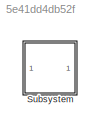
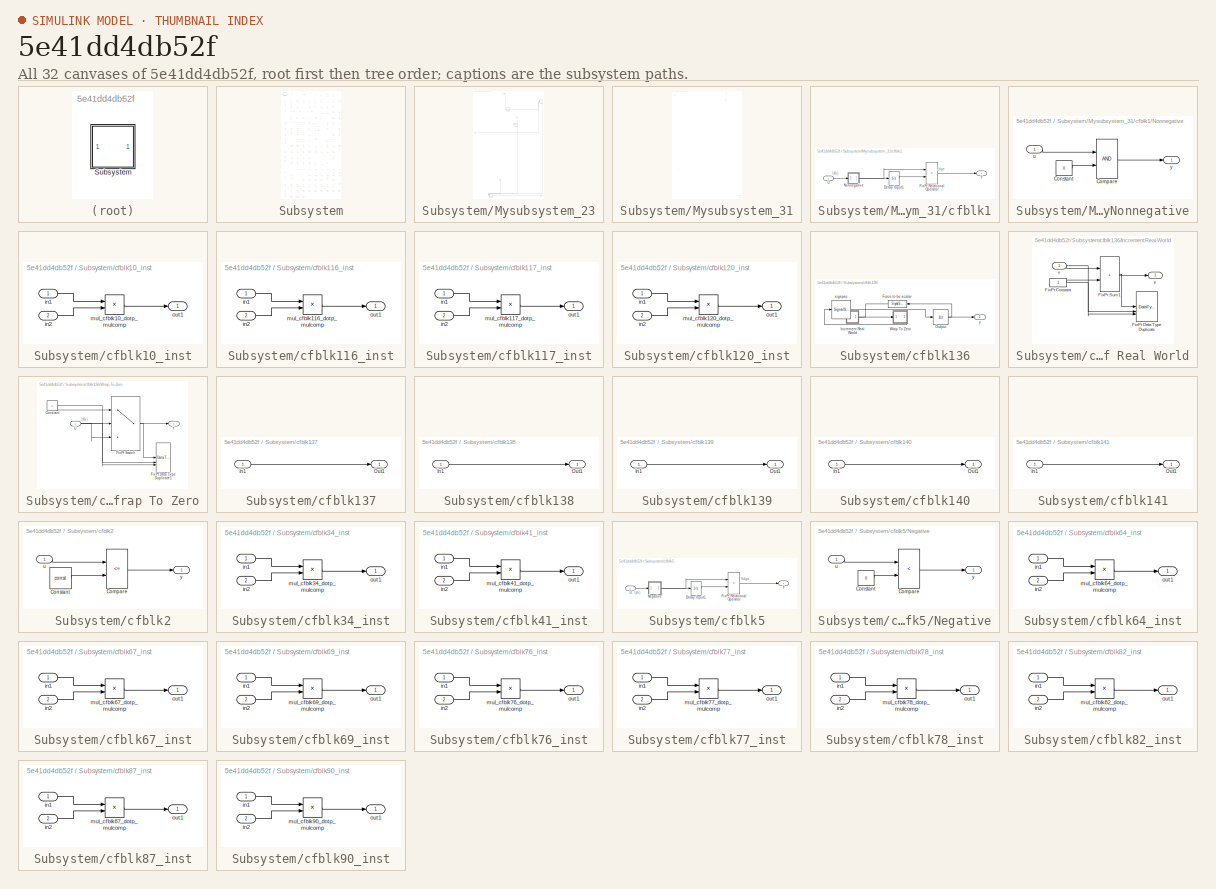
[diagram: thumbnail index - all 32 canvases of the model, root first then tree order]
MODEL slx_5e41dd4db52f
KIND model
CONFIG AbsTol = auto
CONFIG EnableMultiTasking = off
CONFIG FixedStep = auto
CONFIG MaxStep = auto
CONFIG MinStep = auto
CONFIG RelTol = 1e-3
CONFIG SampleTimeConstraint = Unconstrained
CONFIG SolverName = VariableStepAuto
CONFIG StartTime = 0.0
CONFIG StopTime = 10.0
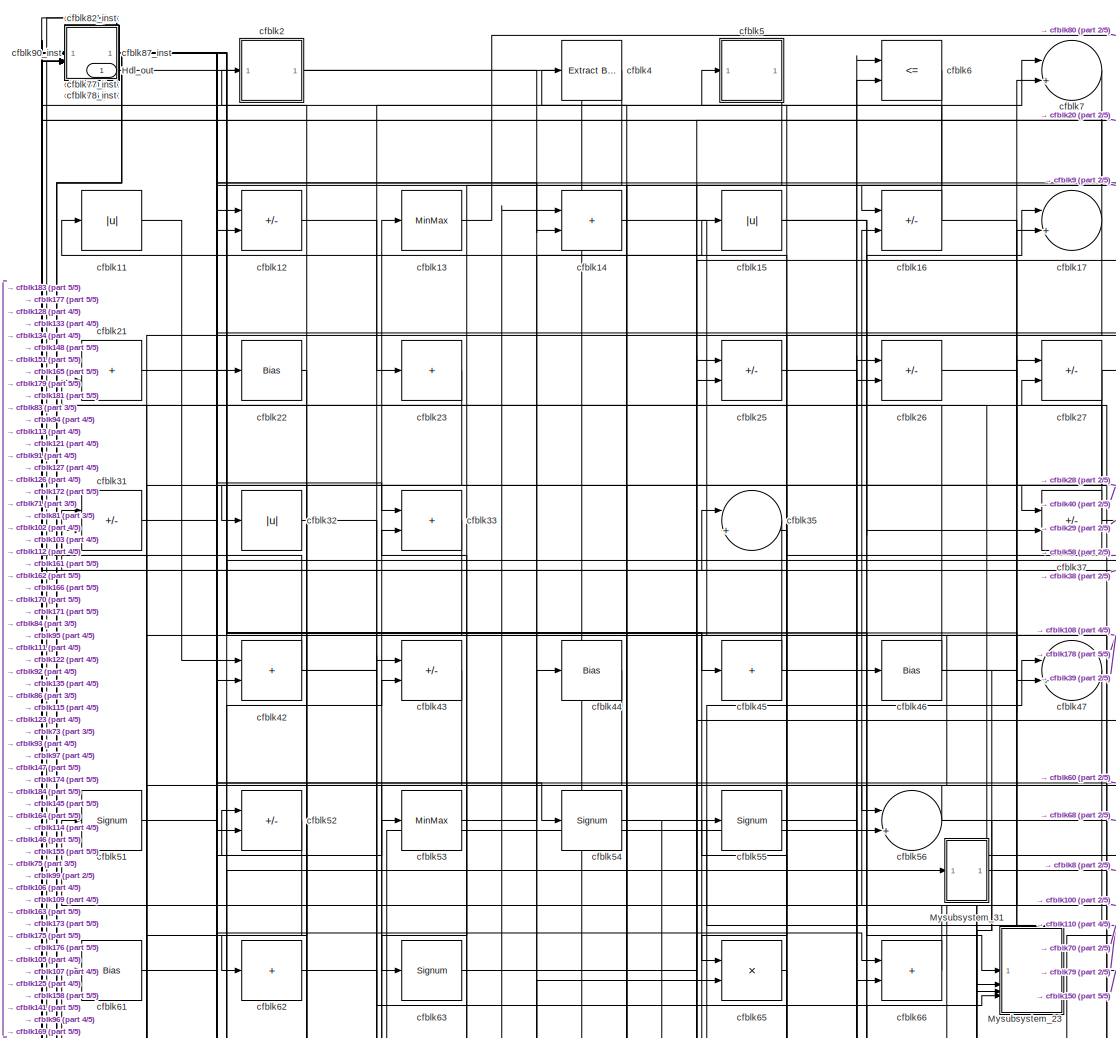
[diagram: Subsystem - part 1/5, top center region]
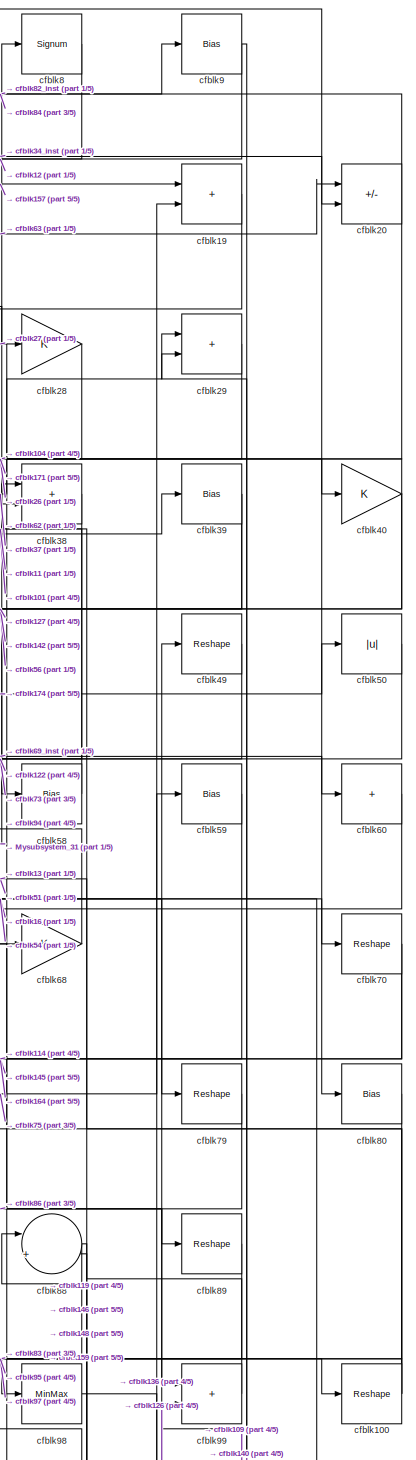
[diagram: Subsystem - part 2/5, top right region]
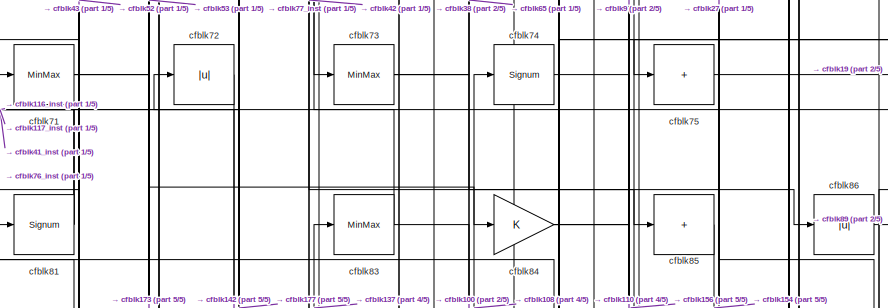
[diagram: Subsystem - part 3/5, middle left region]
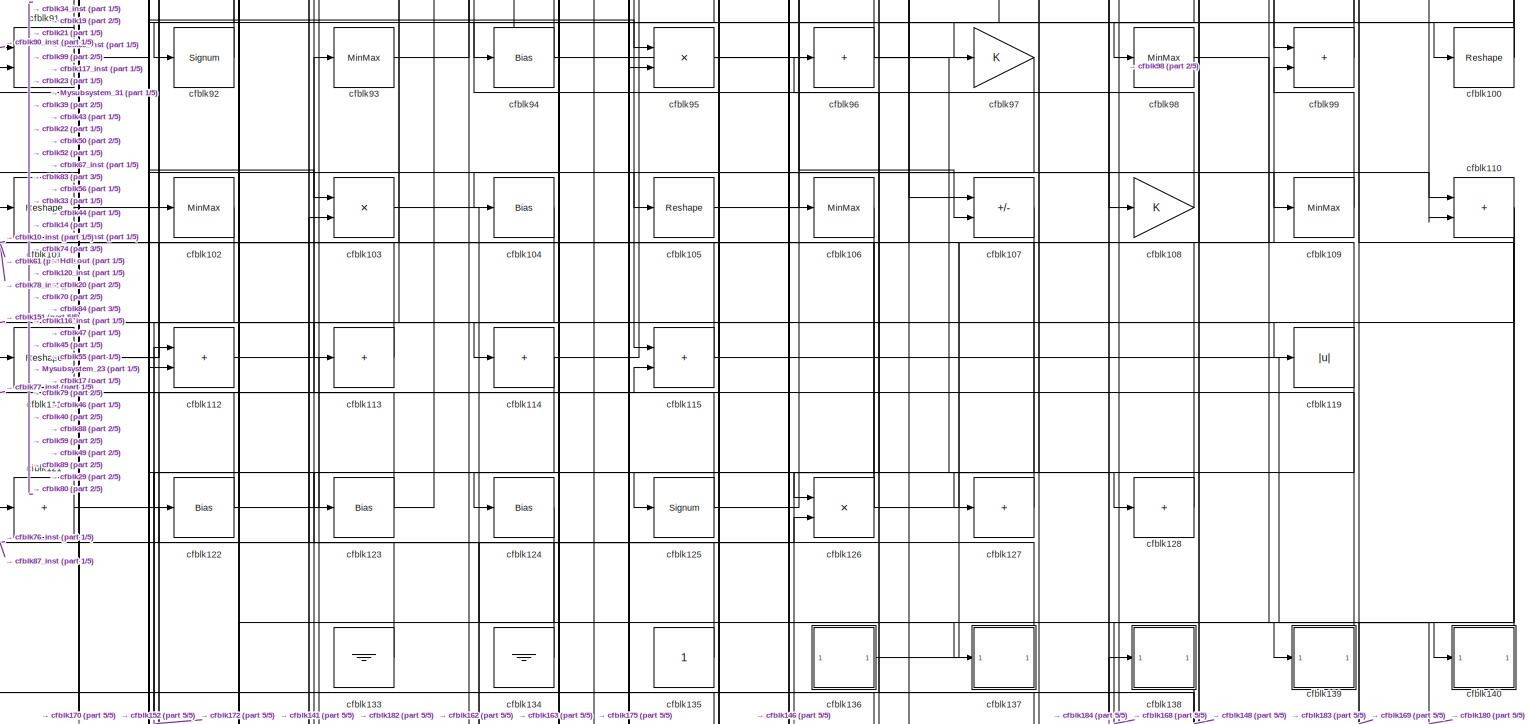
[diagram: Subsystem - part 4/5, full width, middle band]
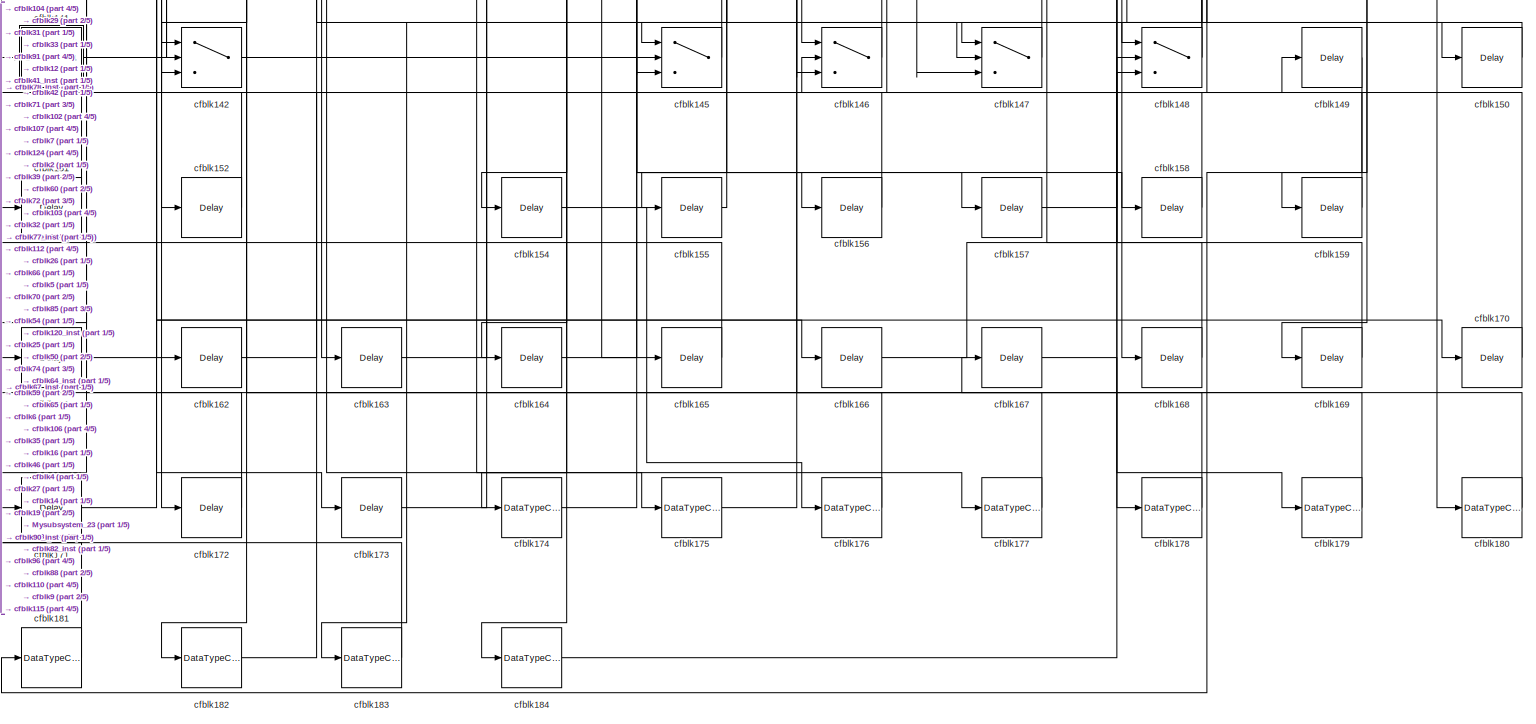
[diagram: Subsystem - part 5/5, full width, bottom band]
BLOCK [SubSystem] Subsystem
BLOCK [Outport] Subsystem/Hdl_out
  OutDataTypeStr = uint8
  SampleTime = 1
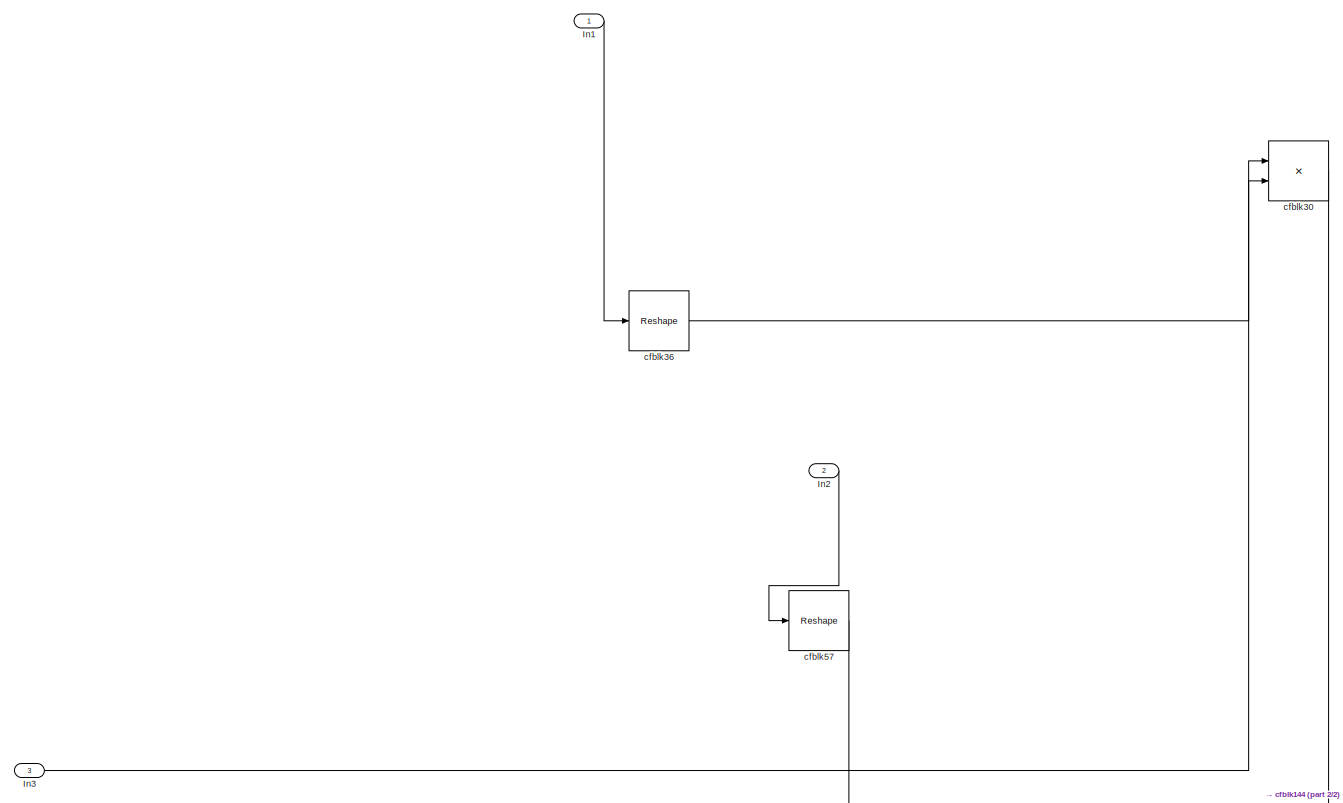
[diagram: Subsystem/Mysubsystem_23 - part 1/2, full width, top band]
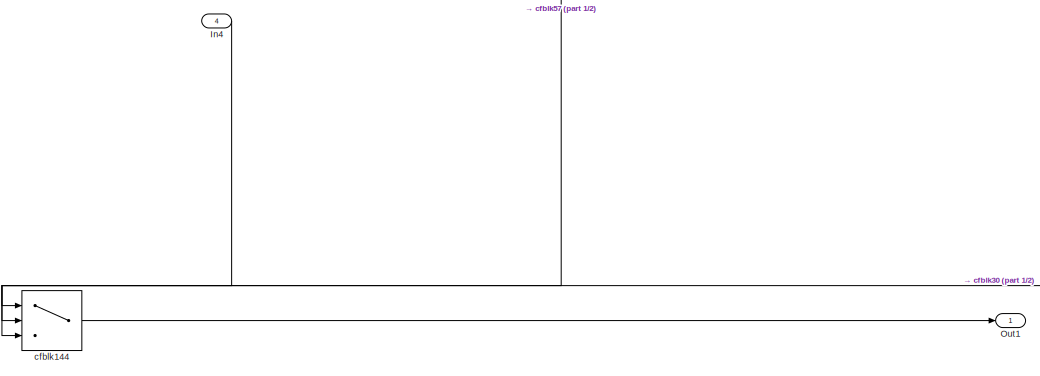
[diagram: Subsystem/Mysubsystem_23 - part 2/2, full width, bottom band]
BLOCK [SubSystem] Subsystem/Mysubsystem_23
BLOCK [Inport] Subsystem/Mysubsystem_23/In1
  OutDataTypeStr = uint8
  PortDimensions = 1
  SampleTime = 1
BLOCK [Inport] Subsystem/Mysubsystem_23/In2
  OutDataTypeStr = uint8
  Port = 2
  PortDimensions = 1
  SampleTime = 1
BLOCK [Inport] Subsystem/Mysubsystem_23/In3
  OutDataTypeStr = uint8
  Port = 3
  PortDimensions = 1
  SampleTime = 1
BLOCK [Inport] Subsystem/Mysubsystem_23/In4
  OutDataTypeStr = uint8
  Port = 4
  PortDimensions = 1
  SampleTime = 1
BLOCK [Outport] Subsystem/Mysubsystem_23/Out1
  SampleTime = 1
BLOCK [Switch] Subsystem/Mysubsystem_23/cfblk144
  InputSameDT = off
  SaturateOnIntegerOverflow = off
BLOCK [Product] Subsystem/Mysubsystem_23/cfblk30
  Inputs = */
  RndMeth = Zero
  SaturateOnIntegerOverflow = on
BLOCK [Reshape] Subsystem/Mysubsystem_23/cfblk36
BLOCK [Reshape] Subsystem/Mysubsystem_23/cfblk57
BLOCK [SubSystem] Subsystem/Mysubsystem_31
BLOCK [Inport] Subsystem/Mysubsystem_31/In1
  OutDataTypeStr = uint8
  PortDimensions = 1
  SampleTime = 1
BLOCK [Outport] Subsystem/Mysubsystem_31/Out1
  SampleTime = 1
BLOCK [SubSystem] Subsystem/Mysubsystem_31/cfblk1
BLOCK [UnitDelay] Subsystem/Mysubsystem_31/cfblk1/Delay Input1
  Description = Store in Global RAM
  DisableCoverage = on
  HasFrameUpgradeWarning = on
  InitialCondition = vinit
  SampleTime = -1
BLOCK [RelationalOperator] Subsystem/Mysubsystem_31/cfblk1/FixPt Relational Operator
  InputSameDT = off
  Operator = >
  OutDataTypeStr = boolean
  ZeroCross = off
BLOCK [SubSystem] Subsystem/Mysubsystem_31/cfblk1/Nonnegative
BLOCK [RelationalOperator] Subsystem/Mysubsystem_31/cfblk1/Nonnegative/Compare
  OutDataTypeStr = boolean
  ZeroCross = off
BLOCK [Constant] Subsystem/Mysubsystem_31/cfblk1/Nonnegative/Constant
  DisableCoverage = on
  OutDataTypeStr = Inherit: Inherit via back propagation
  PreserveConstantTs = on
  SampleTime = -1
  Value = 0
BLOCK [Inport] Subsystem/Mysubsystem_31/cfblk1/Nonnegative/u
  OutDataTypeStr = uint8
  SampleTime = 1
BLOCK [Outport] Subsystem/Mysubsystem_31/cfblk1/Nonnegative/y
  SampleTime = 1
BLOCK [Inport] Subsystem/Mysubsystem_31/cfblk1/U
  OutDataTypeStr = uint8
  SampleTime = 1
BLOCK [Outport] Subsystem/Mysubsystem_31/cfblk1/Y
  SampleTime = 1
BLOCK [Delay] Subsystem/Mysubsystem_31/cfblk160
  InputPortMap = u0
  SampleTime = 1
BLOCK [Gain] Subsystem/Mysubsystem_31/cfblk18
BLOCK [Reshape] Subsystem/cfblk100
BLOCK [Reshape] Subsystem/cfblk101
BLOCK [MinMax] Subsystem/cfblk102
  OutDataTypeStr = uint8
BLOCK [Product] Subsystem/cfblk103
  Inputs = */
  OutDataTypeStr = uint8
  RndMeth = Zero
  SaturateOnIntegerOverflow = on
BLOCK [Bias] Subsystem/cfblk104
  Bias = 0.0
  SaturateOnIntegerOverflow = off
BLOCK [Reshape] Subsystem/cfblk105
BLOCK [MinMax] Subsystem/cfblk106
  OutDataTypeStr = uint8
BLOCK [Sum] Subsystem/cfblk107
  IconShape = rectangular
  Inputs = +-
  OutDataTypeStr = uint8
BLOCK [Gain] Subsystem/cfblk108
  OutDataTypeStr = uint8
BLOCK [MinMax] Subsystem/cfblk109
  OutDataTypeStr = uint8
BLOCK [SubSystem] Subsystem/cfblk10_inst
BLOCK [Inport] Subsystem/cfblk10_inst/in1
  OutDataTypeStr = uint8
  SampleTime = 1
BLOCK [Inport] Subsystem/cfblk10_inst/in2
  OutDataTypeStr = uint8
  Port = 2
  SampleTime = 1
BLOCK [Product] Subsystem/cfblk10_inst/mul_cfblk10_dotp_mulcomp
  Inputs = **
  OutDataTypeStr = uint8
  SampleTime = 1
BLOCK [Outport] Subsystem/cfblk10_inst/out1
  OutDataTypeStr = uint8
  SampleTime = 1
BLOCK [Abs] Subsystem/cfblk11
  OutDataTypeStr = uint8
  SaturateOnIntegerOverflow = off
BLOCK [Sum] Subsystem/cfblk110
  IconShape = rectangular
  OutDataTypeStr = uint8
BLOCK [Reshape] Subsystem/cfblk111
BLOCK [Sum] Subsystem/cfblk112
  IconShape = rectangular
  OutDataTypeStr = uint8
BLOCK [Sum] Subsystem/cfblk113
  IconShape = rectangular
  Inputs = +
  OutDataTypeStr = uint8
BLOCK [Sum] Subsystem/cfblk114
  IconShape = rectangular
  Inputs = +
  OutDataTypeStr = uint8
BLOCK [Sum] Subsystem/cfblk115
  IconShape = rectangular
  OutDataTypeStr = uint8
BLOCK [SubSystem] Subsystem/cfblk116_inst
BLOCK [Inport] Subsystem/cfblk116_inst/in1
  OutDataTypeStr = uint8
  SampleTime = 1
BLOCK [Inport] Subsystem/cfblk116_inst/in2
  OutDataTypeStr = uint8
  Port = 2
  SampleTime = 1
BLOCK [Product] Subsystem/cfblk116_inst/mul_cfblk116_dotp_mulcomp
  Inputs = **
  OutDataTypeStr = uint8
  SampleTime = 1
BLOCK [Outport] Subsystem/cfblk116_inst/out1
  OutDataTypeStr = uint8
  SampleTime = 1
BLOCK [SubSystem] Subsystem/cfblk117_inst
BLOCK [Inport] Subsystem/cfblk117_inst/in1
  OutDataTypeStr = uint8
  SampleTime = 1
BLOCK [Inport] Subsystem/cfblk117_inst/in2
  OutDataTypeStr = uint8
  Port = 2
  SampleTime = 1
BLOCK [Product] Subsystem/cfblk117_inst/mul_cfblk117_dotp_mulcomp
  Inputs = **
  OutDataTypeStr = uint8
  SampleTime = 1
BLOCK [Outport] Subsystem/cfblk117_inst/out1
  OutDataTypeStr = uint8
  SampleTime = 1
BLOCK [Abs] Subsystem/cfblk119
  OutDataTypeStr = uint8
  SaturateOnIntegerOverflow = off
BLOCK [Sum] Subsystem/cfblk12
  IconShape = rectangular
  Inputs = +-
  OutDataTypeStr = uint8
BLOCK [SubSystem] Subsystem/cfblk120_inst
BLOCK [Inport] Subsystem/cfblk120_inst/in1
  OutDataTypeStr = uint8
  SampleTime = 1
BLOCK [Inport] Subsystem/cfblk120_inst/in2
  OutDataTypeStr = uint8
  Port = 2
  SampleTime = 1
BLOCK [Product] Subsystem/cfblk120_inst/mul_cfblk120_dotp_mulcomp
  Inputs = **
  OutDataTypeStr = uint8
  SampleTime = 1
BLOCK [Outport] Subsystem/cfblk120_inst/out1
  OutDataTypeStr = uint8
  SampleTime = 1
BLOCK [Sum] Subsystem/cfblk121
  IconShape = rectangular
  Inputs = +
  OutDataTypeStr = uint8
BLOCK [Bias] Subsystem/cfblk122
  Bias = 0.0
  SaturateOnIntegerOverflow = off
BLOCK [Bias] Subsystem/cfblk123
  Bias = 0.0
  SaturateOnIntegerOverflow = off
BLOCK [Bias] Subsystem/cfblk124
  Bias = 0.0
  SaturateOnIntegerOverflow = off
BLOCK [Signum] Subsystem/cfblk125
BLOCK [Product] Subsystem/cfblk126
  Inputs = */
  OutDataTypeStr = uint8
  RndMeth = Zero
  SaturateOnIntegerOverflow = on
BLOCK [Sum] Subsystem/cfblk127
  IconShape = rectangular
  Inputs = +
  OutDataTypeStr = uint8
BLOCK [Sum] Subsystem/cfblk128
  IconShape = rectangular
  Inputs = +
  OutDataTypeStr = uint8
BLOCK [MinMax] Subsystem/cfblk13
  OutDataTypeStr = uint8
BLOCK [Ground] Subsystem/cfblk133
BLOCK [Ground] Subsystem/cfblk134
BLOCK [Constant] Subsystem/cfblk135
  OutDataTypeStr = uint8
  SampleTime = -1
BLOCK [SubSystem] Subsystem/cfblk136
BLOCK [SignalSpecification] Subsystem/cfblk136/Force to be scalar
  Dimensions = 1
  DisableCoverage = on
BLOCK [SubSystem] Subsystem/cfblk136/Increment Real World
BLOCK [Constant] Subsystem/cfblk136/Increment Real World/FixPt Constant
  DisableCoverage = on
  OutDataTypeStr = Inherit: Inherit via back propagation
  SampleTime = -1
BLOCK [DataTypeDuplicate] Subsystem/cfblk136/Increment Real World/FixPt Data Type Duplicate
  DisableCoverage = on
  NumInputPorts = 3
BLOCK [Sum] Subsystem/cfblk136/Increment Real World/FixPt Sum1
  IconShape = rectangular
  InputSameDT = on
  LockScale = on
  OutDataTypeStr = Inherit: Inherit via back propagation
BLOCK [Inport] Subsystem/cfblk136/Increment Real World/u
  OutDataTypeStr = uint8
  SampleTime = 1
BLOCK [Outport] Subsystem/cfblk136/Increment Real World/y
  SampleTime = 1
BLOCK [UnitDelay] Subsystem/cfblk136/Output
  HasFrameUpgradeWarning = on
  InitialCondition = 0.0
  SampleTime = tsamp
BLOCK [SubSystem] Subsystem/cfblk136/Wrap To Zero
BLOCK [Constant] Subsystem/cfblk136/Wrap To Zero/Constant
  DisableCoverage = on
  OutDataTypeStr = Inherit: Inherit via back propagation
  SampleTime = -1
  Value = 0
BLOCK [DataTypeDuplicate] Subsystem/cfblk136/Wrap To Zero/FixPt Data Type Duplicate1
  DisableCoverage = on
  NumInputPorts = 3
BLOCK [Switch] Subsystem/cfblk136/Wrap To Zero/FixPt Switch
  Criteria = u2 > Threshold
  InputSameDT = off
  OutDataTypeStr = Inherit: Inherit via back propagation
  SaturateOnIntegerOverflow = off
  Threshold = Threshold
  ZeroCross = off
BLOCK [Inport] Subsystem/cfblk136/Wrap To Zero/U
  OutDataTypeStr = uint8
  SampleTime = 1
BLOCK [Outport] Subsystem/cfblk136/Wrap To Zero/Y
  SampleTime = 1
BLOCK [SignalSpecification] Subsystem/cfblk136/sigspec
  Dimensions = 1
  OutDataTypeStr = uint8
BLOCK [Outport] Subsystem/cfblk136/y
  SampleTime = 1
BLOCK [SubSystem] Subsystem/cfblk137
BLOCK [Inport] Subsystem/cfblk137/In1
  OutDataTypeStr = uint8
  PortDimensions = 1
  SampleTime = 1
BLOCK [Outport] Subsystem/cfblk137/Out1
  SampleTime = 1
BLOCK [SubSystem] Subsystem/cfblk138
BLOCK [Inport] Subsystem/cfblk138/In1
  OutDataTypeStr = uint8
  PortDimensions = 1
  SampleTime = 1
BLOCK [Outport] Subsystem/cfblk138/Out1
  SampleTime = 1
BLOCK [SubSystem] Subsystem/cfblk139
BLOCK [Inport] Subsystem/cfblk139/In1
  OutDataTypeStr = uint8
  PortDimensions = 1
  SampleTime = 1
BLOCK [Outport] Subsystem/cfblk139/Out1
  SampleTime = 1
BLOCK [Sum] Subsystem/cfblk14
  IconShape = rectangular
  OutDataTypeStr = uint8
BLOCK [SubSystem] Subsystem/cfblk140
BLOCK [Inport] Subsystem/cfblk140/In1
  OutDataTypeStr = uint8
  PortDimensions = 1
  SampleTime = 1
BLOCK [Outport] Subsystem/cfblk140/Out1
  SampleTime = 1
BLOCK [SubSystem] Subsystem/cfblk141
BLOCK [Inport] Subsystem/cfblk141/In1
  OutDataTypeStr = uint8
  PortDimensions = 1
  SampleTime = 1
BLOCK [Outport] Subsystem/cfblk141/Out1
  SampleTime = 1
BLOCK [Switch] Subsystem/cfblk142
  InputSameDT = off
  OutDataTypeStr = uint8
  SaturateOnIntegerOverflow = off
BLOCK [Switch] Subsystem/cfblk145
  InputSameDT = off
  OutDataTypeStr = uint8
  SaturateOnIntegerOverflow = off
BLOCK [Switch] Subsystem/cfblk146
  InputSameDT = off
  OutDataTypeStr = uint8
  SaturateOnIntegerOverflow = off
BLOCK [Switch] Subsystem/cfblk147
  InputSameDT = off
  OutDataTypeStr = uint8
  SaturateOnIntegerOverflow = off
BLOCK [Switch] Subsystem/cfblk148
  InputSameDT = off
  OutDataTypeStr = uint8
  SaturateOnIntegerOverflow = off
BLOCK [Delay] Subsystem/cfblk149
  InputPortMap = u0
  SampleTime = 1
BLOCK [Abs] Subsystem/cfblk15
  OutDataTypeStr = uint8
  SaturateOnIntegerOverflow = off
BLOCK [Delay] Subsystem/cfblk150
  InputPortMap = u0
  SampleTime = 1
BLOCK [Delay] Subsystem/cfblk151
  InputPortMap = u0
  SampleTime = 1
BLOCK [Delay] Subsystem/cfblk152
  InputPortMap = u0
  SampleTime = 1
BLOCK [Delay] Subsystem/cfblk154
  InputPortMap = u0
  SampleTime = 1
BLOCK [Delay] Subsystem/cfblk155
  InputPortMap = u0
  SampleTime = 1
BLOCK [Delay] Subsystem/cfblk156
  InputPortMap = u0
  SampleTime = 1
BLOCK [Delay] Subsystem/cfblk157
  InputPortMap = u0
  SampleTime = 1
BLOCK [Delay] Subsystem/cfblk158
  InputPortMap = u0
  SampleTime = 1
BLOCK [Delay] Subsystem/cfblk159
  InputPortMap = u0
  SampleTime = 1
BLOCK [Sum] Subsystem/cfblk16
  IconShape = rectangular
  Inputs = +-
  OutDataTypeStr = uint8
BLOCK [Delay] Subsystem/cfblk161
  InputPortMap = u0
  SampleTime = 1
BLOCK [Delay] Subsystem/cfblk162
  InputPortMap = u0
  SampleTime = 1
BLOCK [Delay] Subsystem/cfblk163
  InputPortMap = u0
  SampleTime = 1
BLOCK [Delay] Subsystem/cfblk164
  InputPortMap = u0
  SampleTime = 1
BLOCK [Delay] Subsystem/cfblk165
  InputPortMap = u0
  SampleTime = 1
BLOCK [Delay] Subsystem/cfblk166
  InputPortMap = u0
  SampleTime = 1
BLOCK [Delay] Subsystem/cfblk167
  InputPortMap = u0
  SampleTime = 1
BLOCK [Delay] Subsystem/cfblk168
  InputPortMap = u0
  SampleTime = 1
BLOCK [Delay] Subsystem/cfblk169
  InputPortMap = u0
  SampleTime = 1
BLOCK [Sum] Subsystem/cfblk17
  Inputs = |++
  OutDataTypeStr = uint8
BLOCK [Delay] Subsystem/cfblk170
  InputPortMap = u0
  SampleTime = 1
BLOCK [Delay] Subsystem/cfblk171
  InputPortMap = u0
  SampleTime = 1
BLOCK [Delay] Subsystem/cfblk172
  InputPortMap = u0
  SampleTime = 1
BLOCK [Delay] Subsystem/cfblk173
  InputPortMap = u0
  SampleTime = 1
BLOCK [DataTypeConversion] Subsystem/cfblk174
  OutDataTypeStr = uint8
  RndMeth = Floor
  SaturateOnIntegerOverflow = off
BLOCK [DataTypeConversion] Subsystem/cfblk175
  OutDataTypeStr = uint8
  RndMeth = Floor
  SaturateOnIntegerOverflow = off
BLOCK [DataTypeConversion] Subsystem/cfblk176
  OutDataTypeStr = uint8
  RndMeth = Floor
  SaturateOnIntegerOverflow = off
BLOCK [DataTypeConversion] Subsystem/cfblk177
  OutDataTypeStr = uint8
  RndMeth = Floor
  SaturateOnIntegerOverflow = off
BLOCK [DataTypeConversion] Subsystem/cfblk178
  OutDataTypeStr = uint8
  RndMeth = Floor
  SaturateOnIntegerOverflow = off
BLOCK [DataTypeConversion] Subsystem/cfblk179
  OutDataTypeStr = uint8
  RndMeth = Floor
  SaturateOnIntegerOverflow = off
BLOCK [DataTypeConversion] Subsystem/cfblk180
  OutDataTypeStr = uint8
  RndMeth = Floor
  SaturateOnIntegerOverflow = off
BLOCK [DataTypeConversion] Subsystem/cfblk181
  OutDataTypeStr = uint8
  RndMeth = Floor
  SaturateOnIntegerOverflow = off
BLOCK [DataTypeConversion] Subsystem/cfblk182
  OutDataTypeStr = uint8
  RndMeth = Floor
  SaturateOnIntegerOverflow = off
BLOCK [DataTypeConversion] Subsystem/cfblk183
  OutDataTypeStr = uint8
  RndMeth = Floor
  SaturateOnIntegerOverflow = off
BLOCK [DataTypeConversion] Subsystem/cfblk184
  OutDataTypeStr = uint8
  RndMeth = Floor
  SaturateOnIntegerOverflow = off
BLOCK [Sum] Subsystem/cfblk19
  IconShape = rectangular
  OutDataTypeStr = uint8
BLOCK [SubSystem] Subsystem/cfblk2
BLOCK [RelationalOperator] Subsystem/cfblk2/Compare
  Operator = <=
  OutDataTypeStr = fixdt(0, 8)
BLOCK [Constant] Subsystem/cfblk2/Constant
  DisableCoverage = on
  OutDataTypeStr = Inherit: Inherit via back propagation
  SampleTime = -1
  Value = const
BLOCK [Inport] Subsystem/cfblk2/u
  OutDataTypeStr = uint8
  SampleTime = 1
BLOCK [Outport] Subsystem/cfblk2/y
  SampleTime = 1
BLOCK [Sum] Subsystem/cfblk20
  IconShape = rectangular
  Inputs = +-
  OutDataTypeStr = uint8
BLOCK [Sum] Subsystem/cfblk21
  IconShape = rectangular
  OutDataTypeStr = uint8
BLOCK [Bias] Subsystem/cfblk22
  Bias = 0.0
  SaturateOnIntegerOverflow = off
BLOCK [Sum] Subsystem/cfblk23
  IconShape = rectangular
  Inputs = +
  OutDataTypeStr = uint8
BLOCK [Sum] Subsystem/cfblk25
  IconShape = rectangular
  Inputs = +-
  OutDataTypeStr = uint8
BLOCK [Sum] Subsystem/cfblk26
  IconShape = rectangular
  Inputs = +-
  OutDataTypeStr = uint8
BLOCK [Sum] Subsystem/cfblk27
  IconShape = rectangular
  Inputs = +-
  OutDataTypeStr = uint8
BLOCK [Gain] Subsystem/cfblk28
  OutDataTypeStr = uint8
BLOCK [Sum] Subsystem/cfblk29
  IconShape = rectangular
  OutDataTypeStr = uint8
BLOCK [Sum] Subsystem/cfblk31
  IconShape = rectangular
  Inputs = +-
  OutDataTypeStr = uint8
BLOCK [Abs] Subsystem/cfblk32
  OutDataTypeStr = uint8
  SaturateOnIntegerOverflow = off
BLOCK [Sum] Subsystem/cfblk33
  IconShape = rectangular
  OutDataTypeStr = uint8
BLOCK [SubSystem] Subsystem/cfblk34_inst
BLOCK [Inport] Subsystem/cfblk34_inst/in1
  OutDataTypeStr = uint8
  SampleTime = 1
BLOCK [Inport] Subsystem/cfblk34_inst/in2
  OutDataTypeStr = uint8
  Port = 2
  SampleTime = 1
BLOCK [Product] Subsystem/cfblk34_inst/mul_cfblk34_dotp_mulcomp
  Inputs = **
  OutDataTypeStr = uint8
  SampleTime = 1
BLOCK [Outport] Subsystem/cfblk34_inst/out1
  OutDataTypeStr = uint8
  SampleTime = 1
BLOCK [Sum] Subsystem/cfblk35
  Inputs = |++
  OutDataTypeStr = uint8
BLOCK [Sum] Subsystem/cfblk37
  IconShape = rectangular
  Inputs = +-
  OutDataTypeStr = uint8
BLOCK [Sum] Subsystem/cfblk38
  IconShape = rectangular
  OutDataTypeStr = uint8
BLOCK [Bias] Subsystem/cfblk39
  Bias = 0.0
  SaturateOnIntegerOverflow = off
BLOCK [Reference] Subsystem/cfblk4  REF=simulink/Logic and Bit
Operations/Extract Bits
  LibrarySourceBlock = hdlsllib/Logic and Bit\nOperations/Extract Bits
  SourceBlock = simulink/Logic and Bit\nOperations/Extract Bits
  SourceType = Extract Bits
BLOCK [Gain] Subsystem/cfblk40
  OutDataTypeStr = uint8
BLOCK [SubSystem] Subsystem/cfblk41_inst
BLOCK [Inport] Subsystem/cfblk41_inst/in1
  OutDataTypeStr = uint8
  SampleTime = 1
BLOCK [Inport] Subsystem/cfblk41_inst/in2
  OutDataTypeStr = uint8
  Port = 2
  SampleTime = 1
BLOCK [Product] Subsystem/cfblk41_inst/mul_cfblk41_dotp_mulcomp
  Inputs = **
  OutDataTypeStr = uint8
  SampleTime = 1
BLOCK [Outport] Subsystem/cfblk41_inst/out1
  OutDataTypeStr = uint8
  SampleTime = 1
BLOCK [Sum] Subsystem/cfblk42
  IconShape = rectangular
  OutDataTypeStr = uint8
BLOCK [Sum] Subsystem/cfblk43
  IconShape = rectangular
  Inputs = +-
  OutDataTypeStr = uint8
BLOCK [Bias] Subsystem/cfblk44
  Bias = 0.0
  SaturateOnIntegerOverflow = off
BLOCK [Sum] Subsystem/cfblk45
  IconShape = rectangular
  Inputs = +
  OutDataTypeStr = uint8
BLOCK [Bias] Subsystem/cfblk46
  Bias = 0.0
  SaturateOnIntegerOverflow = off
BLOCK [Sum] Subsystem/cfblk47
  Inputs = |++
  OutDataTypeStr = uint8
BLOCK [Reshape] Subsystem/cfblk49
BLOCK [SubSystem] Subsystem/cfblk5
BLOCK [UnitDelay] Subsystem/cfblk5/Delay Input1
  Description = Store in Global RAM
  DisableCoverage = on
  HasFrameUpgradeWarning = on
  InitialCondition = vinit
  SampleTime = -1
BLOCK [RelationalOperator] Subsystem/cfblk5/FixPt Relational Operator
  InputSameDT = off
  Operator = >
  OutDataTypeStr = fixdt(0, 8)
  ZeroCross = off
BLOCK [SubSystem] Subsystem/cfblk5/Negative
BLOCK [RelationalOperator] Subsystem/cfblk5/Negative/Compare
  Operator = <
  OutDataTypeStr = boolean
  ZeroCross = off
BLOCK [Constant] Subsystem/cfblk5/Negative/Constant
  DisableCoverage = on
  OutDataTypeStr = Inherit: Inherit via back propagation
  PreserveConstantTs = on
  SampleTime = -1
  Value = 0
BLOCK [Inport] Subsystem/cfblk5/Negative/u
  OutDataTypeStr = uint8
  SampleTime = 1
BLOCK [Outport] Subsystem/cfblk5/Negative/y
  SampleTime = 1
BLOCK [Inport] Subsystem/cfblk5/U
  OutDataTypeStr = uint8
  SampleTime = 1
BLOCK [Outport] Subsystem/cfblk5/Y
  SampleTime = 1
BLOCK [Abs] Subsystem/cfblk50
  OutDataTypeStr = uint8
  SaturateOnIntegerOverflow = off
BLOCK [Signum] Subsystem/cfblk51
BLOCK [Sum] Subsystem/cfblk52
  IconShape = rectangular
  Inputs = +-
  OutDataTypeStr = uint8
BLOCK [MinMax] Subsystem/cfblk53
  OutDataTypeStr = uint8
BLOCK [Signum] Subsystem/cfblk54
BLOCK [Signum] Subsystem/cfblk55
BLOCK [Sum] Subsystem/cfblk56
  Inputs = |++
  OutDataTypeStr = uint8
BLOCK [Bias] Subsystem/cfblk58
  Bias = 0.0
  SaturateOnIntegerOverflow = off
BLOCK [Bias] Subsystem/cfblk59
  Bias = 0.0
  SaturateOnIntegerOverflow = off
BLOCK [RelationalOperator] Subsystem/cfblk6
  InputSameDT = off
  Operator = <=
  OutDataTypeStr = boolean
BLOCK [Sum] Subsystem/cfblk60
  IconShape = rectangular
  Inputs = +
  OutDataTypeStr = uint8
BLOCK [Bias] Subsystem/cfblk61
  Bias = 0.0
  SaturateOnIntegerOverflow = off
BLOCK [Sum] Subsystem/cfblk62
  IconShape = rectangular
  Inputs = +
  OutDataTypeStr = uint8
BLOCK [Signum] Subsystem/cfblk63
BLOCK [SubSystem] Subsystem/cfblk64_inst
BLOCK [Inport] Subsystem/cfblk64_inst/in1
  OutDataTypeStr = uint8
  SampleTime = 1
BLOCK [Inport] Subsystem/cfblk64_inst/in2
  OutDataTypeStr = uint8
  Port = 2
  SampleTime = 1
BLOCK [Product] Subsystem/cfblk64_inst/mul_cfblk64_dotp_mulcomp
  Inputs = **
  OutDataTypeStr = uint8
  SampleTime = 1
BLOCK [Outport] Subsystem/cfblk64_inst/out1
  OutDataTypeStr = uint8
  SampleTime = 1
BLOCK [Product] Subsystem/cfblk65
  Inputs = */
  OutDataTypeStr = uint8
  RndMeth = Zero
  SaturateOnIntegerOverflow = on
BLOCK [Sum] Subsystem/cfblk66
  IconShape = rectangular
  OutDataTypeStr = uint8
BLOCK [SubSystem] Subsystem/cfblk67_inst
BLOCK [Inport] Subsystem/cfblk67_inst/in1
  OutDataTypeStr = uint8
  SampleTime = 1
BLOCK [Inport] Subsystem/cfblk67_inst/in2
  OutDataTypeStr = uint8
  Port = 2
  SampleTime = 1
BLOCK [Product] Subsystem/cfblk67_inst/mul_cfblk67_dotp_mulcomp
  Inputs = **
  OutDataTypeStr = uint8
  SampleTime = 1
BLOCK [Outport] Subsystem/cfblk67_inst/out1
  OutDataTypeStr = uint8
  SampleTime = 1
BLOCK [Gain] Subsystem/cfblk68
  OutDataTypeStr = uint8
BLOCK [SubSystem] Subsystem/cfblk69_inst
BLOCK [Inport] Subsystem/cfblk69_inst/in1
  OutDataTypeStr = uint8
  SampleTime = 1
BLOCK [Inport] Subsystem/cfblk69_inst/in2
  OutDataTypeStr = uint8
  Port = 2
  SampleTime = 1
BLOCK [Product] Subsystem/cfblk69_inst/mul_cfblk69_dotp_mulcomp
  Inputs = **
  OutDataTypeStr = uint8
  SampleTime = 1
BLOCK [Outport] Subsystem/cfblk69_inst/out1
  OutDataTypeStr = uint8
  SampleTime = 1
BLOCK [Sum] Subsystem/cfblk7
  Inputs = |++
  OutDataTypeStr = uint8
BLOCK [Reshape] Subsystem/cfblk70
BLOCK [MinMax] Subsystem/cfblk71
  OutDataTypeStr = uint8
BLOCK [Abs] Subsystem/cfblk72
  OutDataTypeStr = uint8
  SaturateOnIntegerOverflow = off
BLOCK [MinMax] Subsystem/cfblk73
  OutDataTypeStr = uint8
BLOCK [Signum] Subsystem/cfblk74
BLOCK [Sum] Subsystem/cfblk75
  IconShape = rectangular
  Inputs = +
  OutDataTypeStr = uint8
BLOCK [SubSystem] Subsystem/cfblk76_inst
BLOCK [Inport] Subsystem/cfblk76_inst/in1
  OutDataTypeStr = uint8
  SampleTime = 1
BLOCK [Inport] Subsystem/cfblk76_inst/in2
  OutDataTypeStr = uint8
  Port = 2
  SampleTime = 1
BLOCK [Product] Subsystem/cfblk76_inst/mul_cfblk76_dotp_mulcomp
  Inputs = **
  OutDataTypeStr = uint8
  SampleTime = 1
BLOCK [Outport] Subsystem/cfblk76_inst/out1
  OutDataTypeStr = uint8
  SampleTime = 1
BLOCK [SubSystem] Subsystem/cfblk77_inst
BLOCK [Inport] Subsystem/cfblk77_inst/in1
  OutDataTypeStr = uint8
  SampleTime = 1
BLOCK [Inport] Subsystem/cfblk77_inst/in2
  OutDataTypeStr = uint8
  Port = 2
  SampleTime = 1
BLOCK [Product] Subsystem/cfblk77_inst/mul_cfblk77_dotp_mulcomp
  Inputs = **
  OutDataTypeStr = uint8
  SampleTime = 1
BLOCK [Outport] Subsystem/cfblk77_inst/out1
  OutDataTypeStr = uint8
  SampleTime = 1
BLOCK [SubSystem] Subsystem/cfblk78_inst
BLOCK [Inport] Subsystem/cfblk78_inst/in1
  OutDataTypeStr = uint8
  SampleTime = 1
BLOCK [Inport] Subsystem/cfblk78_inst/in2
  OutDataTypeStr = uint8
  Port = 2
  SampleTime = 1
BLOCK [Product] Subsystem/cfblk78_inst/mul_cfblk78_dotp_mulcomp
  Inputs = **
  OutDataTypeStr = uint8
  SampleTime = 1
BLOCK [Outport] Subsystem/cfblk78_inst/out1
  OutDataTypeStr = uint8
  SampleTime = 1
BLOCK [Reshape] Subsystem/cfblk79
BLOCK [Signum] Subsystem/cfblk8
BLOCK [Bias] Subsystem/cfblk80
  Bias = 0.0
  SaturateOnIntegerOverflow = off
BLOCK [Signum] Subsystem/cfblk81
BLOCK [SubSystem] Subsystem/cfblk82_inst
BLOCK [Inport] Subsystem/cfblk82_inst/in1
  OutDataTypeStr = uint8
  SampleTime = 1
BLOCK [Inport] Subsystem/cfblk82_inst/in2
  OutDataTypeStr = uint8
  Port = 2
  SampleTime = 1
BLOCK [Product] Subsystem/cfblk82_inst/mul_cfblk82_dotp_mulcomp
  Inputs = **
  OutDataTypeStr = uint8
  SampleTime = 1
BLOCK [Outport] Subsystem/cfblk82_inst/out1
  OutDataTypeStr = uint8
  SampleTime = 1
BLOCK [MinMax] Subsystem/cfblk83
  OutDataTypeStr = uint8
BLOCK [Gain] Subsystem/cfblk84
  OutDataTypeStr = uint8
BLOCK [Sum] Subsystem/cfblk85
  IconShape = rectangular
  Inputs = +
  OutDataTypeStr = uint8
BLOCK [Abs] Subsystem/cfblk86
  OutDataTypeStr = uint8
  SaturateOnIntegerOverflow = off
BLOCK [SubSystem] Subsystem/cfblk87_inst
BLOCK [Inport] Subsystem/cfblk87_inst/in1
  OutDataTypeStr = uint8
  SampleTime = 1
BLOCK [Inport] Subsystem/cfblk87_inst/in2
  OutDataTypeStr = uint8
  Port = 2
  SampleTime = 1
BLOCK [Product] Subsystem/cfblk87_inst/mul_cfblk87_dotp_mulcomp
  Inputs = **
  OutDataTypeStr = uint8
  SampleTime = 1
BLOCK [Outport] Subsystem/cfblk87_inst/out1
  OutDataTypeStr = uint8
  SampleTime = 1
BLOCK [Sum] Subsystem/cfblk88
  Inputs = |++
  OutDataTypeStr = uint8
BLOCK [Reshape] Subsystem/cfblk89
BLOCK [Bias] Subsystem/cfblk9
  Bias = 0.0
  SaturateOnIntegerOverflow = off
BLOCK [SubSystem] Subsystem/cfblk90_inst
BLOCK [Inport] Subsystem/cfblk90_inst/in1
  OutDataTypeStr = uint8
  SampleTime = 1
BLOCK [Inport] Subsystem/cfblk90_inst/in2
  OutDataTypeStr = uint8
  Port = 2
  SampleTime = 1
BLOCK [Product] Subsystem/cfblk90_inst/mul_cfblk90_dotp_mulcomp
  Inputs = **
  OutDataTypeStr = uint8
  SampleTime = 1
BLOCK [Outport] Subsystem/cfblk90_inst/out1
  OutDataTypeStr = uint8
  SampleTime = 1
BLOCK [Sum] Subsystem/cfblk91
  IconShape = rectangular
  OutDataTypeStr = uint8
BLOCK [Signum] Subsystem/cfblk92
BLOCK [MinMax] Subsystem/cfblk93
  OutDataTypeStr = uint8
BLOCK [Bias] Subsystem/cfblk94
  Bias = 0.0
  SaturateOnIntegerOverflow = off
BLOCK [Product] Subsystem/cfblk95
  Inputs = */
  OutDataTypeStr = uint8
  RndMeth = Zero
  SaturateOnIntegerOverflow = on
BLOCK [Sum] Subsystem/cfblk96
  IconShape = rectangular
  Inputs = +
  OutDataTypeStr = uint8
BLOCK [Gain] Subsystem/cfblk97
  OutDataTypeStr = uint8
BLOCK [MinMax] Subsystem/cfblk98
  OutDataTypeStr = uint8
BLOCK [Sum] Subsystem/cfblk99
  IconShape = rectangular
  OutDataTypeStr = uint8
ANNOTATION Subsystem/Mysubsystem_31/cfblk1: Edge
ANNOTATION Subsystem/Mysubsystem_31/cfblk1: U(k)
ANNOTATION Subsystem/cfblk136/Wrap To Zero: U(k)
ANNOTATION Subsystem/cfblk5: Edge
ANNOTATION Subsystem/cfblk5: U(k)
LINE Subsystem/Mysubsystem_23/In1:1 -> Subsystem/Mysubsystem_23/cfblk36:1
LINE Subsystem/Mysubsystem_23/In2:1 -> Subsystem/Mysubsystem_23/cfblk57:1
LINE Subsystem/Mysubsystem_23/In3:1 -> Subsystem/Mysubsystem_23/cfblk30:1
LINE Subsystem/Mysubsystem_23/In4:1 -> Subsystem/Mysubsystem_23/cfblk144:3
LINE Subsystem/Mysubsystem_23/cfblk144:1 -> Subsystem/Mysubsystem_23/Out1:1
LINE Subsystem/Mysubsystem_23/cfblk30:1 -> Subsystem/Mysubsystem_23/cfblk144:2
LINE Subsystem/Mysubsystem_23/cfblk36:1 -> Subsystem/Mysubsystem_23/cfblk30:2
LINE Subsystem/Mysubsystem_23/cfblk57:1 -> Subsystem/Mysubsystem_23/cfblk144:1
LINE Subsystem/Mysubsystem_23:1 -> Subsystem/cfblk150:1
LINE Subsystem/Mysubsystem_31/In1:1 -> Subsystem/Mysubsystem_31/cfblk160:1
LINE Subsystem/Mysubsystem_31/cfblk160:1 -> Subsystem/Mysubsystem_31/cfblk1:1
LINE Subsystem/Mysubsystem_31/cfblk18:1 -> Subsystem/Mysubsystem_31/Out1:1
LINE Subsystem/Mysubsystem_31/cfblk1:1 -> Subsystem/Mysubsystem_31/cfblk18:1
LINE Subsystem/Mysubsystem_31:1 -> Subsystem/cfblk8:1
NET Subsystem/cfblk100:1 -> Subsystem/cfblk13:1, Subsystem/cfblk51:1, Subsystem/cfblk98:1
LINE Subsystem/cfblk101:1 -> Subsystem/cfblk39:1
LINE Subsystem/cfblk102:1 -> Subsystem/cfblk172:1
LINE Subsystem/cfblk103:1 -> Subsystem/cfblk139:1
LINE Subsystem/cfblk104:1 -> Subsystem/cfblk151:1
LINE Subsystem/cfblk105:1 -> Subsystem/cfblk17:1
LINE Subsystem/cfblk106:1 -> Subsystem/cfblk146:1
LINE Subsystem/cfblk107:1 -> Subsystem/cfblk152:1
LINE Subsystem/cfblk108:1 -> Subsystem/cfblk74:1
LINE Subsystem/cfblk109:1 -> Subsystem/cfblk49:1
LINE Subsystem/cfblk10_inst/in1:1 -> Subsystem/cfblk10_inst/mul_cfblk10_dotp_mulcomp:1
LINE Subsystem/cfblk10_inst/in2:1 -> Subsystem/cfblk10_inst/mul_cfblk10_dotp_mulcomp:2
LINE Subsystem/cfblk10_inst/mul_cfblk10_dotp_mulcomp:1 -> Subsystem/cfblk10_inst/out1:1
LINE Subsystem/cfblk10_inst:1 -> Subsystem/cfblk41_inst:1
NET Subsystem/cfblk110:1 -> Subsystem/cfblk111:1, Subsystem/cfblk168:1, Subsystem/cfblk169:1
NET Subsystem/cfblk111:1 -> Subsystem/Mysubsystem_31:1, Subsystem/cfblk43:2
LINE Subsystem/cfblk112:1 -> Subsystem/cfblk175:1
LINE Subsystem/cfblk113:1 -> Subsystem/cfblk78_inst:2
NET Subsystem/cfblk114:1 -> Subsystem/cfblk163:1, Subsystem/cfblk47:1
NET Subsystem/cfblk115:1 -> Subsystem/cfblk180:1, Subsystem/cfblk33:2
LINE Subsystem/cfblk116_inst/in1:1 -> Subsystem/cfblk116_inst/mul_cfblk116_dotp_mulcomp:1
LINE Subsystem/cfblk116_inst/in2:1 -> Subsystem/cfblk116_inst/mul_cfblk116_dotp_mulcomp:2
LINE Subsystem/cfblk116_inst/mul_cfblk116_dotp_mulcomp:1 -> Subsystem/cfblk116_inst/out1:1
LINE Subsystem/cfblk116_inst:1 -> Subsystem/cfblk115:1
LINE Subsystem/cfblk117_inst/in1:1 -> Subsystem/cfblk117_inst/mul_cfblk117_dotp_mulcomp:1
LINE Subsystem/cfblk117_inst/in2:1 -> Subsystem/cfblk117_inst/mul_cfblk117_dotp_mulcomp:2
LINE Subsystem/cfblk117_inst/mul_cfblk117_dotp_mulcomp:1 -> Subsystem/cfblk117_inst/out1:1
NET Subsystem/cfblk117_inst:1 -> Subsystem/cfblk102:1, Subsystem/cfblk107:2, Subsystem/cfblk45:1
NET Subsystem/cfblk119:1 -> Subsystem/cfblk124:1, Subsystem/cfblk88:1
LINE Subsystem/cfblk11:1 -> Subsystem/cfblk42:1
LINE Subsystem/cfblk120_inst/in1:1 -> Subsystem/cfblk120_inst/mul_cfblk120_dotp_mulcomp:1
LINE Subsystem/cfblk120_inst/in2:1 -> Subsystem/cfblk120_inst/mul_cfblk120_dotp_mulcomp:2
LINE Subsystem/cfblk120_inst/mul_cfblk120_dotp_mulcomp:1 -> Subsystem/cfblk120_inst/out1:1
NET Subsystem/cfblk120_inst:1 -> Subsystem/cfblk145:3, Subsystem/cfblk47:2
LINE Subsystem/cfblk121:1 -> Subsystem/cfblk126:2
NET Subsystem/cfblk122:1 -> Subsystem/cfblk52:1, Subsystem/cfblk56:2, Subsystem/cfblk67_inst:1
NET Subsystem/cfblk123:1 -> Subsystem/cfblk14:1, Subsystem/cfblk64_inst:2
LINE Subsystem/cfblk124:1 -> Subsystem/cfblk182:1
NET Subsystem/cfblk125:1 -> Subsystem/Mysubsystem_23:4, Subsystem/cfblk77_inst:1
NET Subsystem/cfblk126:1 -> Subsystem/cfblk21:2, Subsystem/cfblk69_inst:2, Subsystem/cfblk99:2
LINE Subsystem/cfblk127:1 -> Subsystem/cfblk61:1
LINE Subsystem/cfblk128:1 -> Subsystem/cfblk10_inst:1
LINE Subsystem/cfblk12:1 -> Subsystem/cfblk23:1
LINE Subsystem/cfblk133:1 -> Subsystem/cfblk76_inst:2
LINE Subsystem/cfblk134:1 -> Subsystem/cfblk87_inst:1
LINE Subsystem/cfblk135:1 -> Subsystem/cfblk43:1
LINE Subsystem/cfblk136:1 -> Subsystem/cfblk59:1
LINE Subsystem/cfblk137/In1:1 -> Subsystem/cfblk137/Out1:1
LINE Subsystem/cfblk137:1 -> Subsystem/cfblk83:1
LINE Subsystem/cfblk138/In1:1 -> Subsystem/cfblk138/Out1:1
LINE Subsystem/cfblk138:1 -> Subsystem/cfblk183:1
LINE Subsystem/cfblk139/In1:1 -> Subsystem/cfblk139/Out1:1
LINE Subsystem/cfblk139:1 -> Subsystem/cfblk93:1
LINE Subsystem/cfblk13:1 -> Subsystem/cfblk80:1
LINE Subsystem/cfblk140/In1:1 -> Subsystem/cfblk140/Out1:1
LINE Subsystem/cfblk140:1 -> Subsystem/cfblk29:1
LINE Subsystem/cfblk141/In1:1 -> Subsystem/cfblk141/Out1:1
NET Subsystem/cfblk141:1 -> Subsystem/cfblk115:2, Subsystem/cfblk7:2
NET Subsystem/cfblk142:1 -> Subsystem/cfblk157:1, Subsystem/cfblk158:1
LINE Subsystem/cfblk145:1 -> Subsystem/cfblk64_inst:1
LINE Subsystem/cfblk146:1 -> Subsystem/cfblk35:2
LINE Subsystem/cfblk147:1 -> Subsystem/cfblk4:1
NET Subsystem/cfblk148:1 -> Subsystem/cfblk82_inst:2, Subsystem/cfblk96:1
LINE Subsystem/cfblk149:1 -> Subsystem/cfblk181:1
LINE Subsystem/cfblk14:1 -> Subsystem/cfblk178:1
LINE Subsystem/cfblk150:1 -> Subsystem/cfblk147:1
LINE Subsystem/cfblk151:1 -> Subsystem/cfblk78_inst:1
LINE Subsystem/cfblk152:1 -> Subsystem/cfblk112:1
LINE Subsystem/cfblk154:1 -> Subsystem/cfblk176:1
LINE Subsystem/cfblk155:1 -> Subsystem/cfblk35:1
LINE Subsystem/cfblk156:1 -> Subsystem/cfblk146:2
LINE Subsystem/cfblk157:1 -> Subsystem/cfblk19:1
LINE Subsystem/cfblk158:1 -> Subsystem/cfblk16:2
LINE Subsystem/cfblk159:1 -> Subsystem/cfblk88:2
NET Subsystem/cfblk15:1 -> Subsystem/Mysubsystem_23:1, Subsystem/cfblk37:2
LINE Subsystem/cfblk161:1 -> Subsystem/cfblk42:2
LINE Subsystem/cfblk162:1 -> Subsystem/cfblk103:2
LINE Subsystem/cfblk163:1 -> Subsystem/cfblk26:2
LINE Subsystem/cfblk164:1 -> Subsystem/cfblk25:2
LINE Subsystem/cfblk165:1 -> Subsystem/cfblk77_inst:2
LINE Subsystem/cfblk166:1 -> Subsystem/cfblk148:3
LINE Subsystem/cfblk167:1 -> Subsystem/cfblk179:1
LINE Subsystem/cfblk168:1 -> Subsystem/cfblk148:2
LINE Subsystem/cfblk169:1 -> Subsystem/cfblk27:2
NET Subsystem/cfblk16:1 -> Subsystem/cfblk69_inst:1, Subsystem/cfblk79:1
LINE Subsystem/cfblk170:1 -> Subsystem/cfblk91:2
LINE Subsystem/cfblk171:1 -> Subsystem/cfblk12:1
LINE Subsystem/cfblk172:1 -> Subsystem/cfblk31:1
LINE Subsystem/cfblk173:1 -> Subsystem/cfblk66:2
LINE Subsystem/cfblk174:1 -> Subsystem/cfblk50:1
LINE Subsystem/cfblk175:1 -> Subsystem/cfblk6:1
LINE Subsystem/cfblk176:1 -> Subsystem/cfblk6:2
LINE Subsystem/cfblk177:1 -> Subsystem/cfblk72:1
LINE Subsystem/cfblk178:1 -> Subsystem/cfblk2:1
LINE Subsystem/cfblk179:1 -> Subsystem/cfblk67_inst:2
NET Subsystem/cfblk17:1 -> Subsystem/cfblk34_inst:1, Subsystem/cfblk65:1
LINE Subsystem/cfblk180:1 -> Subsystem/cfblk167:1
LINE Subsystem/cfblk181:1 -> Subsystem/cfblk90_inst:1
LINE Subsystem/cfblk182:1 -> Subsystem/cfblk149:1
LINE Subsystem/cfblk183:1 -> Subsystem/cfblk90_inst:2
LINE Subsystem/cfblk184:1 -> Subsystem/cfblk138:1
LINE Subsystem/cfblk19:1 -> Subsystem/cfblk101:1
NET Subsystem/cfblk20:1 -> Subsystem/cfblk104:1, Subsystem/cfblk82_inst:1
LINE Subsystem/cfblk21:1 -> Subsystem/cfblk108:1
LINE Subsystem/cfblk22:1 -> Subsystem/cfblk92:1
LINE Subsystem/cfblk23:1 -> Subsystem/cfblk112:2
LINE Subsystem/cfblk25:1 -> Subsystem/cfblk46:1
LINE Subsystem/cfblk26:1 -> Subsystem/cfblk40:1
NET Subsystem/cfblk27:1 -> Subsystem/cfblk32:1, Subsystem/cfblk75:1, Subsystem/cfblk99:1
LINE Subsystem/cfblk28:1 -> Subsystem/cfblk62:1
LINE Subsystem/cfblk29:1 -> Subsystem/cfblk171:1
LINE Subsystem/cfblk2:1 -> Subsystem/cfblk177:1
LINE Subsystem/cfblk31:1 -> Subsystem/cfblk25:1
LINE Subsystem/cfblk32:1 -> Subsystem/cfblk147:2
LINE Subsystem/cfblk33:1 -> Subsystem/cfblk161:1
LINE Subsystem/cfblk34_inst/in1:1 -> Subsystem/cfblk34_inst/mul_cfblk34_dotp_mulcomp:1
LINE Subsystem/cfblk34_inst/in2:1 -> Subsystem/cfblk34_inst/mul_cfblk34_dotp_mulcomp:2
LINE Subsystem/cfblk34_inst/mul_cfblk34_dotp_mulcomp:1 -> Subsystem/cfblk34_inst/out1:1
NET Subsystem/cfblk34_inst:1 -> Subsystem/cfblk14:2, Subsystem/cfblk20:2
LINE Subsystem/cfblk35:1 -> Subsystem/cfblk31:2
NET Subsystem/cfblk37:1 -> Subsystem/cfblk21:1, Subsystem/cfblk29:2
LINE Subsystem/cfblk38:1 -> Subsystem/cfblk73:1
NET Subsystem/cfblk39:1 -> Subsystem/cfblk142:3, Subsystem/cfblk56:1
NET Subsystem/cfblk40:1 -> Subsystem/cfblk127:1, Subsystem/cfblk37:1, Subsystem/cfblk58:1
LINE Subsystem/cfblk41_inst/in1:1 -> Subsystem/cfblk41_inst/mul_cfblk41_dotp_mulcomp:1
LINE Subsystem/cfblk41_inst/in2:1 -> Subsystem/cfblk41_inst/mul_cfblk41_dotp_mulcomp:2
LINE Subsystem/cfblk41_inst/mul_cfblk41_dotp_mulcomp:1 -> Subsystem/cfblk41_inst/out1:1
NET Subsystem/cfblk41_inst:1 -> Subsystem/cfblk166:1, Subsystem/cfblk54:1
NET Subsystem/cfblk42:1 -> Subsystem/cfblk10_inst:2, Subsystem/cfblk7:1, Subsystem/cfblk86:1
LINE Subsystem/cfblk43:1 -> Subsystem/cfblk81:1
LINE Subsystem/cfblk44:1 -> Subsystem/cfblk113:1
NET Subsystem/cfblk45:1 -> Subsystem/cfblk109:1, Subsystem/cfblk116_inst:1
NET Subsystem/cfblk46:1 -> Subsystem/cfblk110:1, Subsystem/cfblk117_inst:1, Subsystem/cfblk147:3, Subsystem/cfblk27:1
LINE Subsystem/cfblk47:1 -> Subsystem/Mysubsystem_23:2
LINE Subsystem/cfblk49:1 -> Subsystem/cfblk94:1
LINE Subsystem/cfblk4:1 -> Subsystem/cfblk63:1
LINE Subsystem/cfblk50:1 -> Subsystem/cfblk122:1
LINE Subsystem/cfblk51:1 -> Subsystem/cfblk38:1
LINE Subsystem/cfblk52:1 -> Subsystem/cfblk71:1
LINE Subsystem/cfblk53:1 -> Subsystem/cfblk15:1
NET Subsystem/cfblk54:1 -> Subsystem/cfblk165:1, Subsystem/cfblk70:1
LINE Subsystem/cfblk55:1 -> Subsystem/cfblk106:1
NET Subsystem/cfblk56:1 -> Subsystem/cfblk107:1, Subsystem/cfblk52:2, Subsystem/cfblk68:1
LINE Subsystem/cfblk58:1 -> Subsystem/cfblk11:1
LINE Subsystem/cfblk59:1 -> Subsystem/cfblk145:1
LINE Subsystem/cfblk5:1 -> Subsystem/cfblk184:1
LINE Subsystem/cfblk60:1 -> Subsystem/cfblk142:1
NET Subsystem/cfblk61:1 -> Subsystem/cfblk105:1, Subsystem/cfblk123:1
LINE Subsystem/cfblk62:1 -> Subsystem/Mysubsystem_23:3
LINE Subsystem/cfblk63:1 -> Subsystem/cfblk20:1
LINE Subsystem/cfblk64_inst/in1:1 -> Subsystem/cfblk64_inst/mul_cfblk64_dotp_mulcomp:1
LINE Subsystem/cfblk64_inst/in2:1 -> Subsystem/cfblk64_inst/mul_cfblk64_dotp_mulcomp:2
LINE Subsystem/cfblk64_inst/mul_cfblk64_dotp_mulcomp:1 -> Subsystem/cfblk64_inst/out1:1
LINE Subsystem/cfblk64_inst:1 -> Subsystem/cfblk162:1
LINE Subsystem/cfblk65:1 -> Subsystem/cfblk155:1
LINE Subsystem/cfblk66:1 -> Subsystem/cfblk5:1
LINE Subsystem/cfblk67_inst/in1:1 -> Subsystem/cfblk67_inst/mul_cfblk67_dotp_mulcomp:1
LINE Subsystem/cfblk67_inst/in2:1 -> Subsystem/cfblk67_inst/mul_cfblk67_dotp_mulcomp:2
LINE Subsystem/cfblk67_inst/mul_cfblk67_dotp_mulcomp:1 -> Subsystem/cfblk67_inst/out1:1
NET Subsystem/cfblk67_inst:1 -> Subsystem/cfblk103:1, Subsystem/cfblk95:1
LINE Subsystem/cfblk68:1 -> Subsystem/cfblk26:1
LINE Subsystem/cfblk69_inst/in1:1 -> Subsystem/cfblk69_inst/mul_cfblk69_dotp_mulcomp:1
LINE Subsystem/cfblk69_inst/in2:1 -> Subsystem/cfblk69_inst/mul_cfblk69_dotp_mulcomp:2
LINE Subsystem/cfblk69_inst/mul_cfblk69_dotp_mulcomp:1 -> Subsystem/cfblk69_inst/out1:1
LINE Subsystem/cfblk69_inst:1 -> Subsystem/cfblk60:1
LINE Subsystem/cfblk6:1 -> Subsystem/cfblk174:1
NET Subsystem/cfblk70:1 -> Subsystem/cfblk114:1, Subsystem/cfblk164:1
NET Subsystem/cfblk71:1 -> Subsystem/cfblk173:1, Subsystem/cfblk53:1
LINE Subsystem/cfblk72:1 -> Subsystem/cfblk142:2
NET Subsystem/cfblk73:1 -> Subsystem/cfblk65:2, Subsystem/cfblk85:1
LINE Subsystem/cfblk74:1 -> Subsystem/cfblk156:1
LINE Subsystem/cfblk75:1 -> Subsystem/cfblk19:2
LINE Subsystem/cfblk76_inst/in1:1 -> Subsystem/cfblk76_inst/mul_cfblk76_dotp_mulcomp:1
LINE Subsystem/cfblk76_inst/in2:1 -> Subsystem/cfblk76_inst/mul_cfblk76_dotp_mulcomp:2
LINE Subsystem/cfblk76_inst/mul_cfblk76_dotp_mulcomp:1 -> Subsystem/cfblk76_inst/out1:1
NET Subsystem/cfblk76_inst:1 -> Subsystem/cfblk121:1, Subsystem/cfblk22:1, Subsystem/cfblk33:1
LINE Subsystem/cfblk77_inst/in1:1 -> Subsystem/cfblk77_inst/mul_cfblk77_dotp_mulcomp:1
LINE Subsystem/cfblk77_inst/in2:1 -> Subsystem/cfblk77_inst/mul_cfblk77_dotp_mulcomp:2
LINE Subsystem/cfblk77_inst/mul_cfblk77_dotp_mulcomp:1 -> Subsystem/cfblk77_inst/out1:1
NET Subsystem/cfblk77_inst:1 -> Subsystem/cfblk141:1, Subsystem/cfblk170:1, Subsystem/cfblk84:1
LINE Subsystem/cfblk78_inst/in1:1 -> Subsystem/cfblk78_inst/mul_cfblk78_dotp_mulcomp:1
LINE Subsystem/cfblk78_inst/in2:1 -> Subsystem/cfblk78_inst/mul_cfblk78_dotp_mulcomp:2
LINE Subsystem/cfblk78_inst/mul_cfblk78_dotp_mulcomp:1 -> Subsystem/cfblk78_inst/out1:1
LINE Subsystem/cfblk78_inst:1 -> Subsystem/cfblk66:1
LINE Subsystem/cfblk79:1 -> Subsystem/cfblk126:1
LINE Subsystem/cfblk7:1 -> Subsystem/cfblk145:2
LINE Subsystem/cfblk80:1 -> Subsystem/cfblk97:1
NET Subsystem/cfblk81:1 -> Subsystem/cfblk116_inst:2, Subsystem/cfblk41_inst:2, Subsystem/cfblk76_inst:1
LINE Subsystem/cfblk82_inst/in1:1 -> Subsystem/cfblk82_inst/mul_cfblk82_dotp_mulcomp:1
LINE Subsystem/cfblk82_inst/in2:1 -> Subsystem/cfblk82_inst/mul_cfblk82_dotp_mulcomp:2
LINE Subsystem/cfblk82_inst/mul_cfblk82_dotp_mulcomp:1 -> Subsystem/cfblk82_inst/out1:1
LINE Subsystem/cfblk82_inst:1 -> Subsystem/cfblk28:1
NET Subsystem/cfblk83:1 -> Subsystem/cfblk100:1, Subsystem/cfblk117_inst:2
NET Subsystem/cfblk84:1 -> Subsystem/cfblk110:2, Subsystem/cfblk9:1
LINE Subsystem/cfblk85:1 -> Subsystem/cfblk154:1
LINE Subsystem/cfblk86:1 -> Subsystem/cfblk89:1
LINE Subsystem/cfblk87_inst/in1:1 -> Subsystem/cfblk87_inst/mul_cfblk87_dotp_mulcomp:1
LINE Subsystem/cfblk87_inst/in2:1 -> Subsystem/cfblk87_inst/mul_cfblk87_dotp_mulcomp:2
LINE Subsystem/cfblk87_inst/mul_cfblk87_dotp_mulcomp:1 -> Subsystem/cfblk87_inst/out1:1
LINE Subsystem/cfblk87_inst:1 -> Subsystem/cfblk120_inst:1
NET Subsystem/cfblk88:1 -> Subsystem/cfblk146:3, Subsystem/cfblk148:1
LINE Subsystem/cfblk89:1 -> Subsystem/cfblk95:2
LINE Subsystem/cfblk8:1 -> Subsystem/cfblk12:2
LINE Subsystem/cfblk90_inst/in1:1 -> Subsystem/cfblk90_inst/mul_cfblk90_dotp_mulcomp:1
LINE Subsystem/cfblk90_inst/in2:1 -> Subsystem/cfblk90_inst/mul_cfblk90_dotp_mulcomp:2
LINE Subsystem/cfblk90_inst/mul_cfblk90_dotp_mulcomp:1 -> Subsystem/cfblk90_inst/out1:1
LINE Subsystem/cfblk90_inst:1 -> Subsystem/cfblk91:1
NET Subsystem/cfblk91:1 -> Subsystem/cfblk119:1, Subsystem/cfblk34_inst:2
LINE Subsystem/cfblk92:1 -> Subsystem/cfblk87_inst:2
LINE Subsystem/cfblk93:1 -> Subsystem/cfblk44:1
LINE Subsystem/cfblk94:1 -> Subsystem/cfblk120_inst:2
LINE Subsystem/cfblk95:1 -> Subsystem/cfblk137:1
NET Subsystem/cfblk96:1 -> Subsystem/cfblk128:1, Subsystem/cfblk17:2, Subsystem/cfblk55:1
NET Subsystem/cfblk97:1 -> Subsystem/Hdl_out:1, Subsystem/cfblk125:1
LINE Subsystem/cfblk98:1 -> Subsystem/cfblk140:1
LINE Subsystem/cfblk99:1 -> Subsystem/cfblk38:2
NET Subsystem/cfblk9:1 -> Subsystem/cfblk159:1, Subsystem/cfblk16:1
note: NET lines group one-source signal fan-out (src -> all destinations, sorted); 1:1 wires keep LINE
